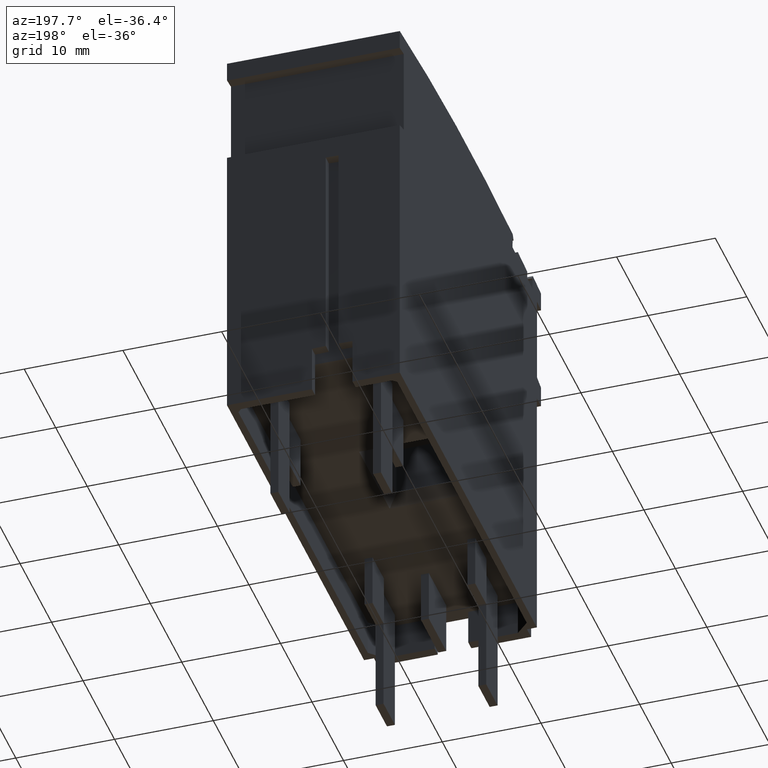
[diagram: clean part render]
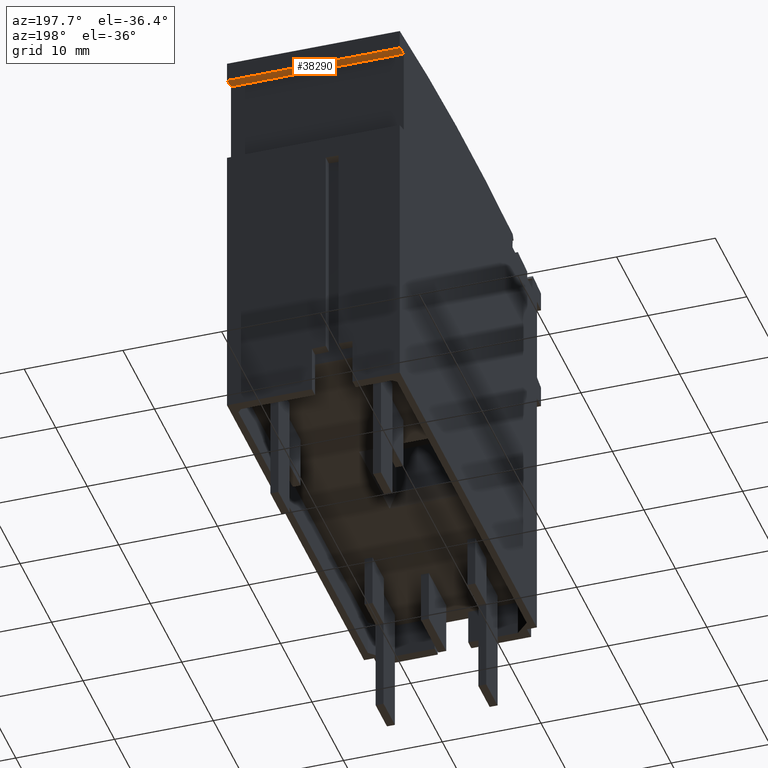
[diagram: same view with one face highlighted and labeled with its STEP entity id]
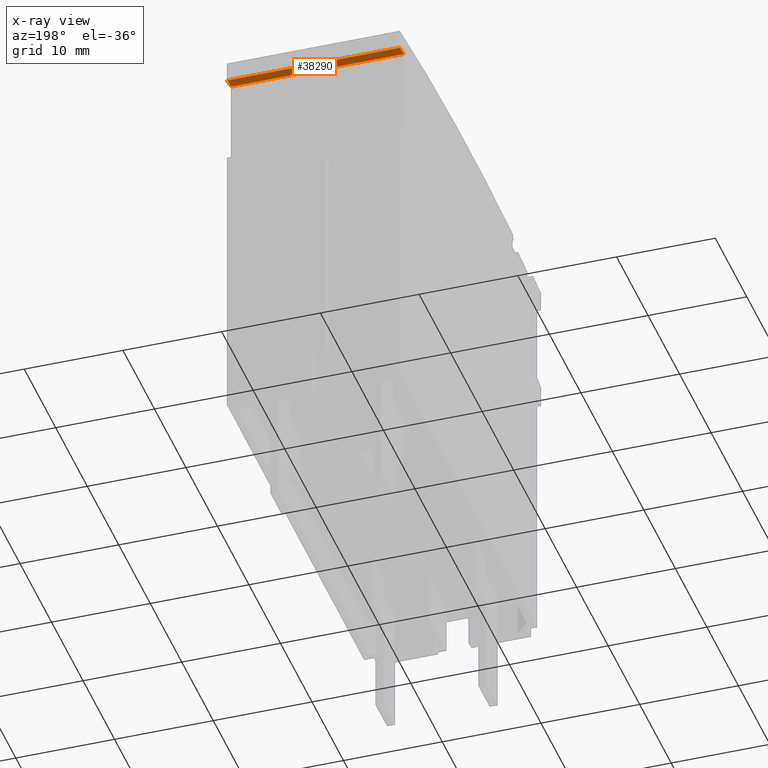
[diagram: x-ray of the same camera — body ghosted, the highlighted face saturated]
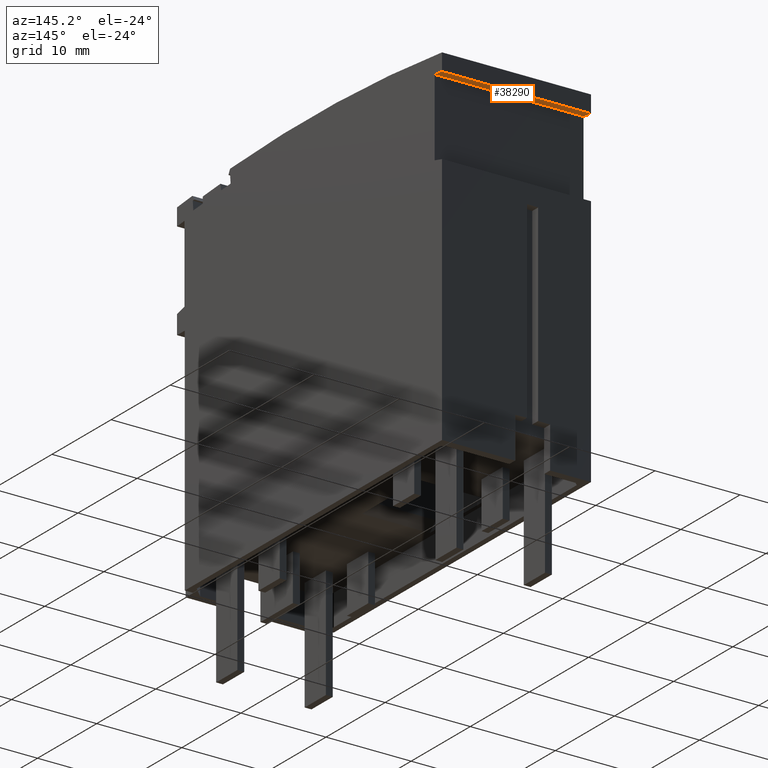
[diagram: same view with one face highlighted and labeled with its STEP entity id]
A machine part, auxiliary view. The second image highlights one B-rep face of the part: STEP entity #38290.
The next image is the same camera in x-ray: the body ghosted, the highlighted face saturated — about 0% of this face is hidden behind the body in this view.
A second angle (auxiliary view) of the same face is appended — the face is thin or edge-on in the first view.
In plain terms, the highlighted cylindrical surface (partial cylindrical patch) has radius 198 mm, axis along (-1, 0, 0).
Its self-contained STEP definition (entity closure, byte-faithful):
#2700=CARTESIAN_POINT('',(48.1922824353117,66.9235310698761,
-48.0500000000926));
#2710=VERTEX_POINT('',#2700);
#2740=CARTESIAN_POINT('',(69.3413513139122,-129.94372594756,
-48.0500000000926));
#2750=DIRECTION('',(-1.22464679914735E-16,0.,1.));
#2760=DIRECTION('',(1.,0.,1.22464679914735E-16));
#2770=AXIS2_PLACEMENT_3D('',#2740,#2750,#2760);
#2780=CIRCLE('',#2770,198.000000000003);
#2790=CARTESIAN_POINT('',(46.941351313915,66.7851229790811,
-48.0500000000926));
#2800=VERTEX_POINT('',#2790);
#2810=EDGE_CURVE('',#2710,#2800,#2780,.T.);
#5320=CARTESIAN_POINT('',(46.9413513139151,66.7851229790811,
-65.5500000000926));
#5330=VERTEX_POINT('',#5320);
#5430=CARTESIAN_POINT('',(46.9413513139151,66.7851229790811,
-65.5500000000926));
#5440=DIRECTION('',(-1.22464679914735E-16,0.,1.));
#5450=VECTOR('',#5440,1.);
#5460=LINE('',#5430,#5450);
#5470=EDGE_CURVE('',#5330,#2800,#5460,.T.);
#36830=CARTESIAN_POINT('',(69.3413513139122,-129.94372594756,
-65.5500000000926));
#36840=DIRECTION('',(-1.22464679914735E-16,0.,1.));
#36850=DIRECTION('',(1.,0.,1.22464679914735E-16));
#36860=AXIS2_PLACEMENT_3D('',#36830,#36840,#36850);
#36870=CIRCLE('',#36860,198.000000000003);
#36880=CARTESIAN_POINT('',(48.1922824353116,66.9235310698761,
-65.5500000000926));
#36890=VERTEX_POINT('',#36880);
#36900=EDGE_CURVE('',#36890,#5330,#36870,.T.);
#38130=CARTESIAN_POINT('',(69.3413513139122,-129.94372594756,
-65.5500000000926));
#38140=DIRECTION('',(-1.22464679914735E-16,0.,1.));
#38150=DIRECTION('',(1.,0.,1.22464679914735E-16));
#38160=AXIS2_PLACEMENT_3D('',#38130,#38140,#38150);
#38170=CYLINDRICAL_SURFACE('',#38160,198.000000000003);
#38180=ORIENTED_EDGE('',*,*,#36900,.F.);
#38190=ORIENTED_EDGE('',*,*,#5470,.F.);
#38200=ORIENTED_EDGE('',*,*,#2810,.T.);
#38210=CARTESIAN_POINT('',(48.1922824353116,66.9235310698761,
-65.5500000000926));
#38220=DIRECTION('',(-3.67394039744206E-16,0.,1.));
#38230=VECTOR('',#38220,1.);
#38240=LINE('',#38210,#38230);
#38250=EDGE_CURVE('',#36890,#2710,#38240,.T.);
#38260=ORIENTED_EDGE('',*,*,#38250,.T.);
#38270=EDGE_LOOP('',(#38260,#38200,#38190,#38180));
#38280=FACE_OUTER_BOUND('',#38270,.T.);
#38290=ADVANCED_FACE('',(#38280),#38170,.F.);